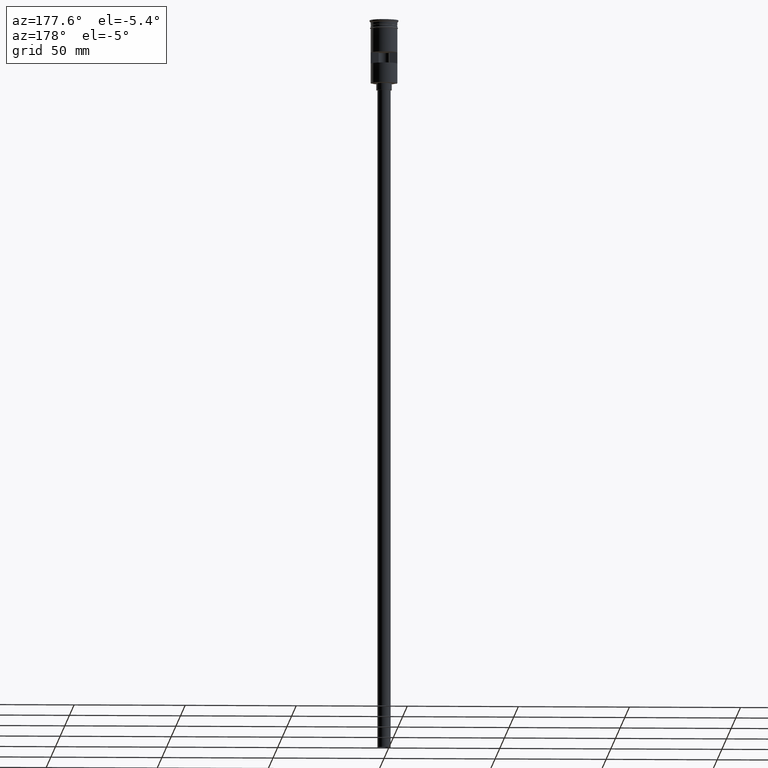
[diagram: clean part render]
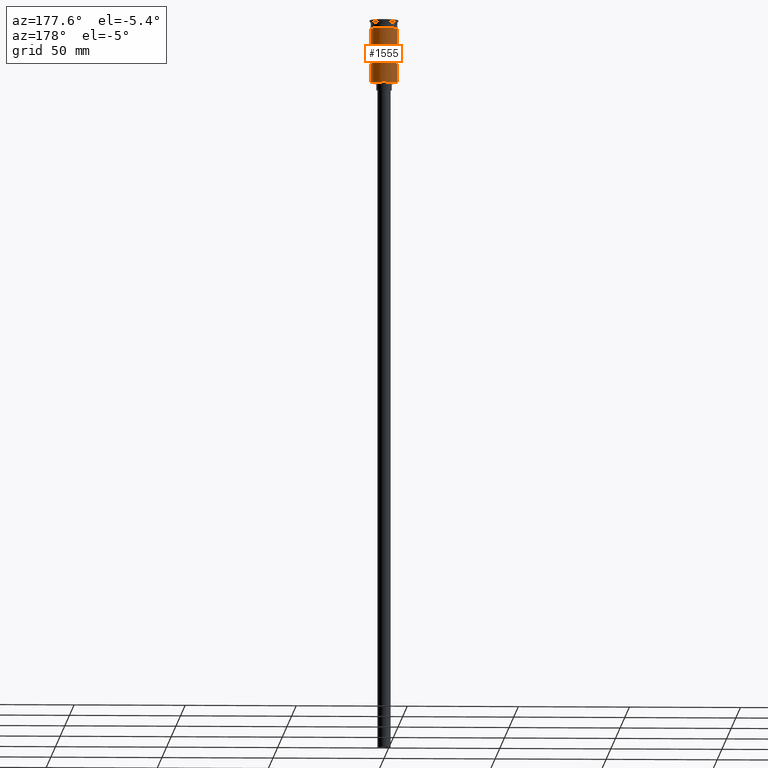
[diagram: same view with one face highlighted and labeled with its STEP entity id]
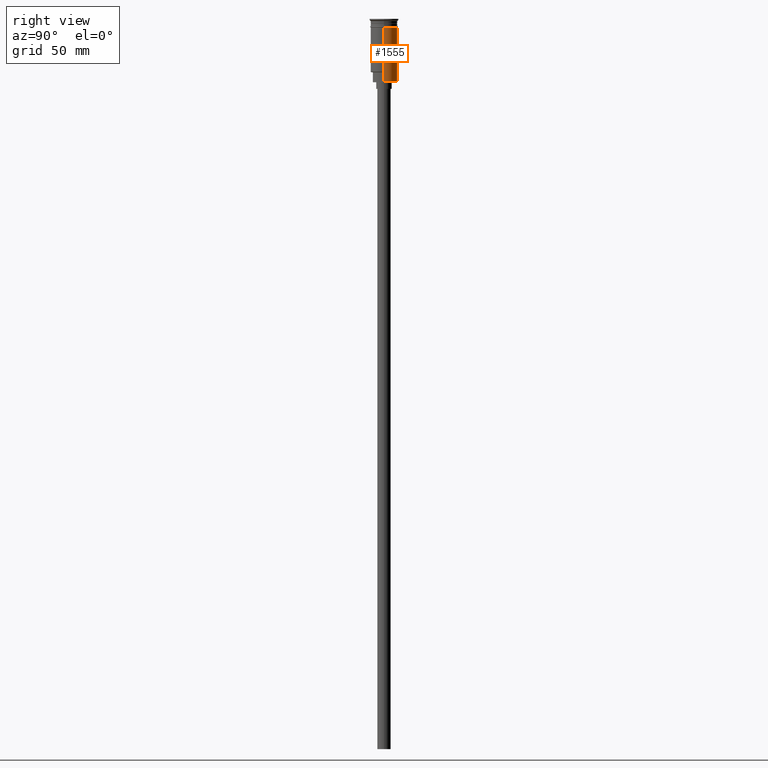
[diagram: same view with one face highlighted and labeled with its STEP entity id]
A machine part, auxiliary view. The second image highlights one B-rep face of the part: STEP entity #1555.
A second angle (right view) of the same face is appended — the face is thin or edge-on in the first view.
In plain terms, the highlighted cylindrical surface (edge-blend (fillet) strip) has radius 6 mm, axis along (-0, -0, 1).
Its self-contained STEP definition (entity closure, byte-faithful):
#4 = ORIENTED_EDGE ( 'NONE', *, *, #1040, .T. ) ;
#20 = ORIENTED_EDGE ( 'NONE', *, *, #212, .F. ) ;
#48 = LINE ( 'NONE', #1171, #1289 ) ;
#74 = FACE_BOUND ( 'NONE', #1506, .T. ) ;
#102 = DIRECTION ( 'NONE',  ( 1.000000000000000000, 0.000000000000000000, 0.000000000000000000 ) ) ;
#107 = EDGE_CURVE ( 'NONE', #1571, #1200, #969, .T. ) ;
#130 = LINE ( 'NONE', #480, #1472 ) ;
#139 = DIRECTION ( 'NONE',  ( -1.000000000000000000, 0.000000000000000000, 0.000000000000000000 ) ) ;
#161 = CARTESIAN_POINT ( 'NONE',  ( 5.999999999999994671, 7.347880794884112834E-16, -28.50000000000000000 ) ) ;
#169 = CARTESIAN_POINT ( 'NONE',  ( 5.999999999999997335, 0.000000000000000000, 0.000000000000000000 ) ) ;
#186 = ORIENTED_EDGE ( 'NONE', *, *, #1537, .F. ) ;
#212 = EDGE_CURVE ( 'NONE', #1112, #862, #889, .T. ) ;
#221 = CIRCLE ( 'NONE', #636, 6.000000000000000000 ) ;
#225 = VERTEX_POINT ( 'NONE', #250 ) ;
#250 = CARTESIAN_POINT ( 'NONE',  ( -5.969924622639716461, 0.5999999999999999778, -14.49999999999999822 ) ) ;
#288 = ORIENTED_EDGE ( 'NONE', *, *, #312, .F. ) ;
#306 = CARTESIAN_POINT ( 'NONE',  ( 0.000000000000000000, 0.000000000000000000, 0.000000000000000000 ) ) ;
#312 = EDGE_CURVE ( 'NONE', #315, #1278, #1282, .T. ) ;
#313 = DIRECTION ( 'NONE',  ( -0.000000000000000000, -0.000000000000000000, 1.000000000000000000 ) ) ;
#315 = VERTEX_POINT ( 'NONE', #1242 ) ;
#333 = EDGE_CURVE ( 'NONE', #1278, #1600, #221, .T. ) ;
#371 = CARTESIAN_POINT ( 'NONE',  ( 0.000000000000000000, 0.000000000000000000, -28.29999999999999716 ) ) ;
#379 = CIRCLE ( 'NONE', #569, 5.999999999999997335 ) ;
#399 = CARTESIAN_POINT ( 'NONE',  ( 5.999999999999994671, 7.347880794884112834E-16, -28.29999999999999716 ) ) ;
#410 = CARTESIAN_POINT ( 'NONE',  ( 5.969924622639712908, 0.5999999999999999778, -14.49999999999999822 ) ) ;
#415 = CARTESIAN_POINT ( 'NONE',  ( -6.000000000000000000, 7.347880794884119736E-16, -3.799999999999998490 ) ) ;
#470 = VERTEX_POINT ( 'NONE', #655 ) ;
#480 = CARTESIAN_POINT ( 'NONE',  ( -5.999999999999997335, 7.347880794884116778E-16, 0.000000000000000000 ) ) ;
#506 = CIRCLE ( 'NONE', #995, 5.999999999999997335 ) ;
#513 = DIRECTION ( 'NONE',  ( -0.000000000000000000, -0.000000000000000000, 1.000000000000000000 ) ) ;
#523 = AXIS2_PLACEMENT_3D ( 'NONE', #306, #568, #1288 ) ;
#524 = EDGE_CURVE ( 'NONE', #1148, #1571, #1596, .T. ) ;
#562 = ORIENTED_EDGE ( 'NONE', *, *, #1330, .F. ) ;
#568 = DIRECTION ( 'NONE',  ( -0.000000000000000000, -0.000000000000000000, 1.000000000000000000 ) ) ;
#569 = AXIS2_PLACEMENT_3D ( 'NONE', #631, #892, #885 ) ;
#579 = ORIENTED_EDGE ( 'NONE', *, *, #524, .T. ) ;
#609 = CARTESIAN_POINT ( 'NONE',  ( 0.000000000000000000, 0.000000000000000000, -14.49999999999999822 ) ) ;
#631 = CARTESIAN_POINT ( 'NONE',  ( 0.000000000000000000, 0.000000000000000000, -19.50000000000000355 ) ) ;
#636 = AXIS2_PLACEMENT_3D ( 'NONE', #1437, #1558, #102 ) ;
#655 = CARTESIAN_POINT ( 'NONE',  ( -5.969924622639716461, 0.5999999999999997558, -19.50000000000000355 ) ) ;
#672 = CARTESIAN_POINT ( 'NONE',  ( 5.969924622639716461, 0.5999999999999997558, 0.000000000000000000 ) ) ;
#706 = EDGE_CURVE ( 'NONE', #470, #225, #48, .T. ) ;
#713 = VECTOR ( 'NONE', #836, 1000.000000000000000 ) ;
#729 = CARTESIAN_POINT ( 'NONE',  ( 6.000000000000000000, 0.000000000000000000, -3.799999999999998490 ) ) ;
#760 = DIRECTION ( 'NONE',  ( 0.000000000000000000, 0.000000000000000000, 1.000000000000000000 ) ) ;
#764 = ORIENTED_EDGE ( 'NONE', *, *, #1304, .F. ) ;
#836 = DIRECTION ( 'NONE',  ( -0.000000000000000000, -0.000000000000000000, 1.000000000000000000 ) ) ;
#852 = DIRECTION ( 'NONE',  ( -0.000000000000000000, -0.000000000000000000, 1.000000000000000000 ) ) ;
#856 = ORIENTED_EDGE ( 'NONE', *, *, #333, .F. ) ;
#862 = VERTEX_POINT ( 'NONE', #1087 ) ;
#874 = AXIS2_PLACEMENT_3D ( 'NONE', #371, #760, #139 ) ;
#885 = DIRECTION ( 'NONE',  ( -1.000000000000000000, 0.000000000000000000, 0.000000000000000000 ) ) ;
#889 = LINE ( 'NONE', #672, #1442 ) ;
#892 = DIRECTION ( 'NONE',  ( 0.000000000000000000, 0.000000000000000000, 1.000000000000000000 ) ) ;
#911 = ORIENTED_EDGE ( 'NONE', *, *, #706, .F. ) ;
#921 = DIRECTION ( 'NONE',  ( -0.000000000000000000, -0.000000000000000000, 1.000000000000000000 ) ) ;
#930 = VECTOR ( 'NONE', #921, 1000.000000000000000 ) ;
#940 = ORIENTED_EDGE ( 'NONE', *, *, #107, .T. ) ;
#969 = LINE ( 'NONE', #1217, #713 ) ;
#994 = CARTESIAN_POINT ( 'NONE',  ( -5.999999999999994671, 0.000000000000000000, -23.79999999999995453 ) ) ;
#995 = AXIS2_PLACEMENT_3D ( 'NONE', #609, #1062, #1110 ) ;
#1038 = CARTESIAN_POINT ( 'NONE',  ( -5.999999999999994671, 0.000000000000000000, -28.29999999999999716 ) ) ;
#1040 = EDGE_CURVE ( 'NONE', #1200, #1600, #130, .T. ) ;
#1059 = CYLINDRICAL_SURFACE ( 'NONE', #523, 5.999999999999997335 ) ;
#1062 = DIRECTION ( 'NONE',  ( -0.000000000000000000, -3.212450881438533227E-16, -1.000000000000000000 ) ) ;
#1087 = CARTESIAN_POINT ( 'NONE',  ( 5.969924622639712908, 0.5999999999999999778, -19.50000000000000355 ) ) ;
#1110 = DIRECTION ( 'NONE',  ( 0.000000000000000000, -1.000000000000000000, 2.891205793294679805E-16 ) ) ;
#1112 = VERTEX_POINT ( 'NONE', #410 ) ;
#1148 = VERTEX_POINT ( 'NONE', #399 ) ;
#1171 = CARTESIAN_POINT ( 'NONE',  ( -5.969924622639716461, 0.5999999999999997558, 0.000000000000000000 ) ) ;
#1172 = DIRECTION ( 'NONE',  ( 0.000000000000000000, 0.000000000000000000, -1.000000000000000000 ) ) ;
#1200 = VERTEX_POINT ( 'NONE', #994 ) ;
#1217 = CARTESIAN_POINT ( 'NONE',  ( -5.999999999999994671, 0.000000000000000000, -28.50000000000000000 ) ) ;
#1224 = EDGE_LOOP ( 'NONE', ( #940, #4, #856, #288, #186, #579 ) ) ;
#1242 = CARTESIAN_POINT ( 'NONE',  ( 5.999999999999997335, 7.347880794884115792E-16, -23.79999999999995453 ) ) ;
#1278 = VERTEX_POINT ( 'NONE', #729 ) ;
#1282 = LINE ( 'NONE', #169, #930 ) ;
#1288 = DIRECTION ( 'NONE',  ( 1.000000000000000000, 0.000000000000000000, 0.000000000000000000 ) ) ;
#1289 = VECTOR ( 'NONE', #513, 1000.000000000000000 ) ;
#1304 = EDGE_CURVE ( 'NONE', #225, #1112, #506, .T. ) ;
#1330 = EDGE_CURVE ( 'NONE', #862, #470, #379, .T. ) ;
#1360 = VECTOR ( 'NONE', #313, 1000.000000000000000 ) ;
#1429 = LINE ( 'NONE', #161, #1360 ) ;
#1437 = CARTESIAN_POINT ( 'NONE',  ( 0.000000000000000000, 0.000000000000000000, -3.799999999999998490 ) ) ;
#1442 = VECTOR ( 'NONE', #1172, 1000.000000000000000 ) ;
#1472 = VECTOR ( 'NONE', #852, 1000.000000000000000 ) ;
#1506 = EDGE_LOOP ( 'NONE', ( #20, #764, #911, #562 ) ) ;
#1535 = FACE_OUTER_BOUND ( 'NONE', #1224, .T. ) ;
#1537 = EDGE_CURVE ( 'NONE', #1148, #315, #1429, .T. ) ;
#1555 = ADVANCED_FACE ( 'NONE', ( #74, #1535 ), #1059, .T. ) ;
#1558 = DIRECTION ( 'NONE',  ( -0.000000000000000000, -0.000000000000000000, 1.000000000000000000 ) ) ;
#1571 = VERTEX_POINT ( 'NONE', #1038 ) ;
#1596 = CIRCLE ( 'NONE', #874, 5.999999999999997335 ) ;
#1600 = VERTEX_POINT ( 'NONE', #415 ) ;